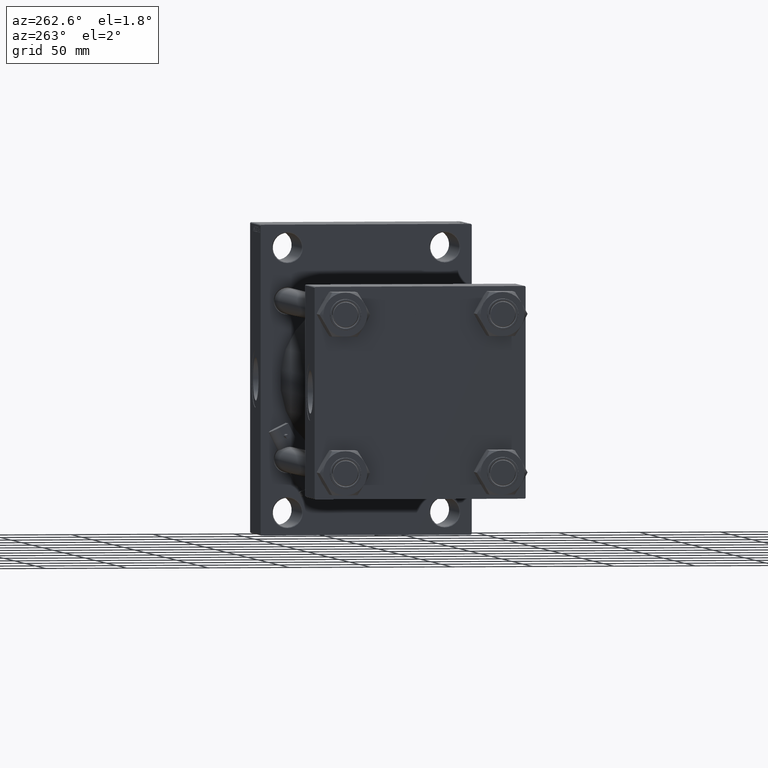
[diagram: clean part render]
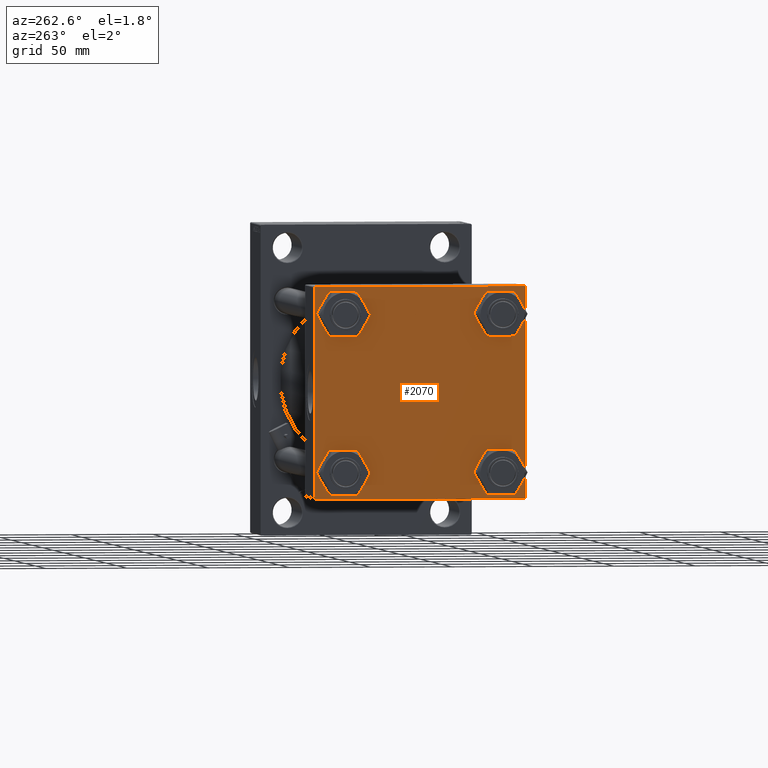
[diagram: same view with one face highlighted and labeled with its STEP entity id]
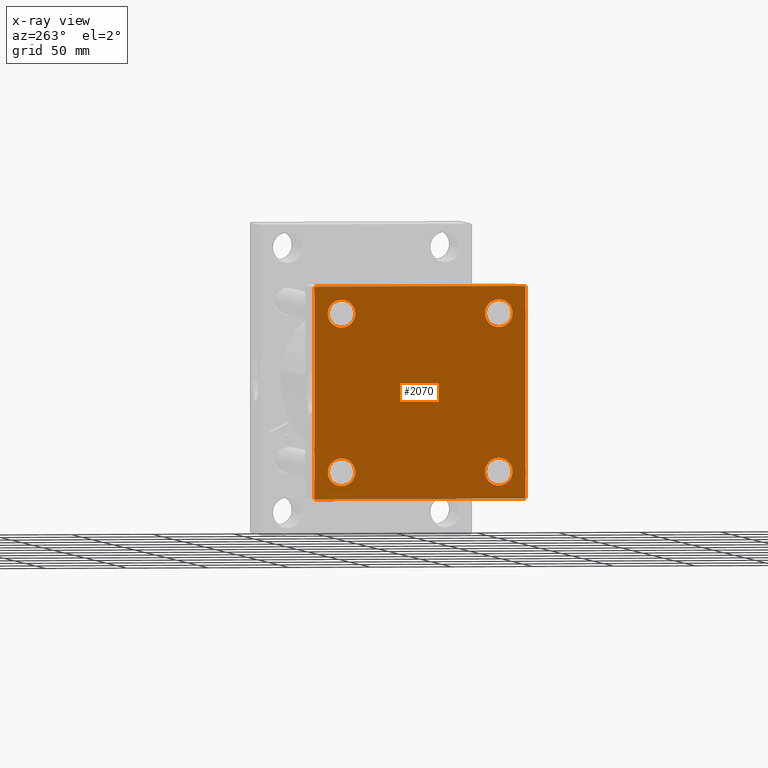
[diagram: x-ray of the same camera — body ghosted, the highlighted face saturated]
A machine part, auxiliary view. The second image highlights one B-rep face of the part: STEP entity #2070.
The next image is the same camera in x-ray: the body ghosted, the highlighted face saturated — about 0% of this face is hidden behind the body in this view.
In plain terms, the highlighted planar face has unit normal (-1, 0, 0).
Its self-contained STEP definition (entity closure, byte-faithful):
#351 = ORIENTED_EDGE ( 'NONE', *, *, #11827, .T. ) ;
#659 = ORIENTED_EDGE ( 'NONE', *, *, #25198, .T. ) ;
#1198 = EDGE_CURVE ( 'NONE', #4623, #29017, #22431, .T. ) ;
#2006 = EDGE_CURVE ( 'NONE', #46653, #12898, #28375, .T. ) ;
#2070 = ADVANCED_FACE ( 'NONE', ( #29105, #32586, #21216, #22180, #6864 ), #17756, .T. ) ;
#3373 = AXIS2_PLACEMENT_3D ( 'NONE', #15522, #45618, #28591 ) ;
#4022 = VECTOR ( 'NONE', #20595, 1000.000000000000000 ) ;
#4623 = VERTEX_POINT ( 'NONE', #26793 ) ;
#5046 = CARTESIAN_POINT ( 'NONE',  ( 0.000000000000000000, 48.45000000000000995, -48.45000000000001705 ) ) ;
#5408 = DIRECTION ( 'NONE',  ( 0.000000000000000000, 0.000000000000000000, -1.000000000000000000 ) ) ;
#6053 = CARTESIAN_POINT ( 'NONE',  ( 0.000000000000000000, 64.49999999999997158, -64.99999999999998579 ) ) ;
#6116 = DIRECTION ( 'NONE',  ( 0.000000000000000000, 0.000000000000000000, -1.000000000000000000 ) ) ;
#6147 = CARTESIAN_POINT ( 'NONE',  ( 0.000000000000000000, 0.000000000000000000, 0.000000000000000000 ) ) ;
#6240 = CARTESIAN_POINT ( 'NONE',  ( 0.000000000000000000, -65.00000000000000000, 64.50000000000000000 ) ) ;
#6554 = CARTESIAN_POINT ( 'NONE',  ( 0.000000000000000000, 65.00000000000000000, -64.49999999999995737 ) ) ;
#6864 = FACE_OUTER_BOUND ( 'NONE', #8700, .T. ) ;
#7552 = DIRECTION ( 'NONE',  ( 0.000000000000000000, 0.000000000000000000, 1.000000000000000000 ) ) ;
#7795 = VERTEX_POINT ( 'NONE', #6240 ) ;
#8123 = DIRECTION ( 'NONE',  ( 1.000000000000000000, -0.000000000000000000, 0.000000000000000000 ) ) ;
#8440 = CARTESIAN_POINT ( 'NONE',  ( 0.000000000000000000, 64.74999999999997158, -64.74999999999997158 ) ) ;
#8700 = EDGE_LOOP ( 'NONE', ( #14493, #46841, #48747, #28647, #8718, #31308, #28714, #35930 ) ) ;
#8718 = ORIENTED_EDGE ( 'NONE', *, *, #32762, .F. ) ;
#9231 = CARTESIAN_POINT ( 'NONE',  ( -0.000000000000000000, -64.74999999999819522, 64.75000000000179057 ) ) ;
#9331 = LINE ( 'NONE', #28089, #47600 ) ;
#9992 = AXIS2_PLACEMENT_3D ( 'NONE', #41611, #26077, #7552 ) ;
#10099 = DIRECTION ( 'NONE',  ( -0.000000000000000000, 0.000000000000000000, 1.000000000000000000 ) ) ;
#10304 = CARTESIAN_POINT ( 'NONE',  ( 0.000000000000000000, -64.49999999999997158, 65.00000000000000000 ) ) ;
#10438 = EDGE_LOOP ( 'NONE', ( #23700, #28710 ) ) ;
#10764 = CIRCLE ( 'NONE', #9992, 8.500000000000007105 ) ;
#10966 = DIRECTION ( 'NONE',  ( 0.000000000000000000, 0.000000000000000000, 1.000000000000000000 ) ) ;
#11440 = AXIS2_PLACEMENT_3D ( 'NONE', #6147, #29353, #10099 ) ;
#11662 = DIRECTION ( 'NONE',  ( -0.000000000000000000, -0.7071067811865474617, -0.7071067811865474617 ) ) ;
#11682 = VERTEX_POINT ( 'NONE', #10304 ) ;
#11801 = DIRECTION ( 'NONE',  ( 1.000000000000000000, -0.000000000000000000, 0.000000000000000000 ) ) ;
#11827 = EDGE_CURVE ( 'NONE', #42698, #48233, #10764, .T. ) ;
#12783 = CARTESIAN_POINT ( 'NONE',  ( 0.000000000000000000, 64.49999999999997158, 65.00000000000001421 ) ) ;
#12874 = CARTESIAN_POINT ( 'NONE',  ( 0.000000000000000000, -64.49999999999994316, -65.00000000000000000 ) ) ;
#12898 = VERTEX_POINT ( 'NONE', #6554 ) ;
#13347 = VERTEX_POINT ( 'NONE', #12874 ) ;
#13803 = CARTESIAN_POINT ( 'NONE',  ( 0.000000000000000000, -48.44999999999999574, -39.95000000000001705 ) ) ;
#13860 = DIRECTION ( 'NONE',  ( 0.000000000000000000, -1.000000000000000000, -1.067522139062650425E-16 ) ) ;
#14493 = ORIENTED_EDGE ( 'NONE', *, *, #2006, .T. ) ;
#14559 = CIRCLE ( 'NONE', #42139, 8.500000000000007105 ) ;
#14574 = AXIS2_PLACEMENT_3D ( 'NONE', #5046, #20112, #30312 ) ;
#15522 = CARTESIAN_POINT ( 'NONE',  ( 0.000000000000000000, -48.44999999999999574, 48.45000000000003126 ) ) ;
#15986 = CARTESIAN_POINT ( 'NONE',  ( 0.000000000000000000, -48.44999999999999574, 56.95000000000003837 ) ) ;
#16682 = VECTOR ( 'NONE', #11662, 1000.000000000000114 ) ;
#16861 = DIRECTION ( 'NONE',  ( 0.000000000000000000, -0.7071067811865279218, 0.7071067811865671127 ) ) ;
#17574 = VERTEX_POINT ( 'NONE', #29309 ) ;
#17637 = EDGE_CURVE ( 'NONE', #34892, #46653, #34232, .T. ) ;
#17756 = PLANE ( 'NONE',  #11440 ) ;
#18657 = CARTESIAN_POINT ( 'NONE',  ( 0.000000000000000000, -48.44999999999999574, 48.45000000000003126 ) ) ;
#18867 = CARTESIAN_POINT ( 'NONE',  ( 0.000000000000000000, 48.45000000000000995, 39.95000000000000284 ) ) ;
#19483 = DIRECTION ( 'NONE',  ( 0.000000000000000000, 0.000000000000000000, 1.000000000000000000 ) ) ;
#19689 = DIRECTION ( 'NONE',  ( 0.000000000000000000, 0.000000000000000000, 1.000000000000000000 ) ) ;
#20112 = DIRECTION ( 'NONE',  ( 1.000000000000000000, -0.000000000000000000, 0.000000000000000000 ) ) ;
#20132 = CARTESIAN_POINT ( 'NONE',  ( 0.000000000000000000, 64.74999999999998579, 64.74999999999998579 ) ) ;
#20225 = CARTESIAN_POINT ( 'NONE',  ( 0.000000000000000000, 65.00000000000000000, 65.00000000000001421 ) ) ;
#20567 = LINE ( 'NONE', #35635, #35782 ) ;
#20595 = DIRECTION ( 'NONE',  ( -0.000000000000000000, 0.7071067811865672237, 0.7071067811865279218 ) ) ;
#21216 = FACE_BOUND ( 'NONE', #27451, .T. ) ;
#21256 = VECTOR ( 'NONE', #33091, 1000.000000000000000 ) ;
#21445 = AXIS2_PLACEMENT_3D ( 'NONE', #47054, #39668, #24362 ) ;
#21759 = VERTEX_POINT ( 'NONE', #31769 ) ;
#22180 = FACE_BOUND ( 'NONE', #25657, .T. ) ;
#22431 = CIRCLE ( 'NONE', #14574, 8.500000000000007105 ) ;
#23133 = EDGE_CURVE ( 'NONE', #7795, #11682, #34935, .T. ) ;
#23685 = CARTESIAN_POINT ( 'NONE',  ( 0.000000000000000000, 65.00000000000000000, 64.49999999999998579 ) ) ;
#23700 = ORIENTED_EDGE ( 'NONE', *, *, #31518, .T. ) ;
#23987 = CARTESIAN_POINT ( 'NONE',  ( 0.000000000000000000, 65.00000000000000000, 65.00000000000001421 ) ) ;
#24362 = DIRECTION ( 'NONE',  ( 0.000000000000000000, 0.000000000000000000, 1.000000000000000000 ) ) ;
#24596 = ORIENTED_EDGE ( 'NONE', *, *, #1198, .T. ) ;
#25198 = EDGE_CURVE ( 'NONE', #21759, #36946, #38670, .T. ) ;
#25406 = EDGE_CURVE ( 'NONE', #44193, #41715, #32497, .T. ) ;
#25657 = EDGE_LOOP ( 'NONE', ( #659, #29594 ) ) ;
#26077 = DIRECTION ( 'NONE',  ( 1.000000000000000000, -0.000000000000000000, 0.000000000000000000 ) ) ;
#26761 = EDGE_CURVE ( 'NONE', #12898, #29419, #46188, .T. ) ;
#26793 = CARTESIAN_POINT ( 'NONE',  ( 0.000000000000000000, 48.45000000000000995, -56.95000000000002416 ) ) ;
#26803 = DIRECTION ( 'NONE',  ( 0.000000000000000000, 0.7071067811865474617, -0.7071067811865474617 ) ) ;
#27451 = EDGE_LOOP ( 'NONE', ( #32270, #24596 ) ) ;
#27681 = LINE ( 'NONE', #23987, #35433 ) ;
#27745 = AXIS2_PLACEMENT_3D ( 'NONE', #18657, #33721, #33973 ) ;
#28089 = CARTESIAN_POINT ( 'NONE',  ( 0.000000000000000000, -65.00000000000000000, 65.00000000000000000 ) ) ;
#28273 = EDGE_CURVE ( 'NONE', #36946, #21759, #40363, .T. ) ;
#28375 = LINE ( 'NONE', #20225, #28781 ) ;
#28591 = DIRECTION ( 'NONE',  ( 0.000000000000000000, 0.000000000000000000, 1.000000000000000000 ) ) ;
#28647 = ORIENTED_EDGE ( 'NONE', *, *, #32400, .T. ) ;
#28710 = ORIENTED_EDGE ( 'NONE', *, *, #25406, .T. ) ;
#28714 = ORIENTED_EDGE ( 'NONE', *, *, #41131, .F. ) ;
#28781 = VECTOR ( 'NONE', #5408, 1000.000000000000000 ) ;
#29017 = VERTEX_POINT ( 'NONE', #35268 ) ;
#29105 = FACE_BOUND ( 'NONE', #10438, .T. ) ;
#29309 = CARTESIAN_POINT ( 'NONE',  ( 0.000000000000000000, -65.00000000000000000, -64.49999999999991473 ) ) ;
#29353 = DIRECTION ( 'NONE',  ( -1.000000000000000000, 0.000000000000000000, -0.000000000000000000 ) ) ;
#29419 = VERTEX_POINT ( 'NONE', #6053 ) ;
#29594 = ORIENTED_EDGE ( 'NONE', *, *, #28273, .T. ) ;
#29735 = CARTESIAN_POINT ( 'NONE',  ( 0.000000000000000000, -48.44999999999999574, -48.45000000000003126 ) ) ;
#29864 = CARTESIAN_POINT ( 'NONE',  ( 0.000000000000000000, 48.45000000000000995, -48.45000000000001705 ) ) ;
#30312 = DIRECTION ( 'NONE',  ( 0.000000000000000000, 0.000000000000000000, 1.000000000000000000 ) ) ;
#31022 = CARTESIAN_POINT ( 'NONE',  ( 0.000000000000000000, -48.44999999999999574, 39.95000000000001705 ) ) ;
#31308 = ORIENTED_EDGE ( 'NONE', *, *, #23133, .T. ) ;
#31518 = EDGE_CURVE ( 'NONE', #41715, #44193, #48329, .T. ) ;
#31769 = CARTESIAN_POINT ( 'NONE',  ( 0.000000000000000000, 48.45000000000000995, 56.95000000000002416 ) ) ;
#31834 = CIRCLE ( 'NONE', #34978, 8.500000000000007105 ) ;
#32131 = EDGE_CURVE ( 'NONE', #48233, #42698, #31834, .T. ) ;
#32270 = ORIENTED_EDGE ( 'NONE', *, *, #33736, .T. ) ;
#32366 = CARTESIAN_POINT ( 'NONE',  ( 0.000000000000000000, 65.00000000000000000, -64.99999999999998579 ) ) ;
#32400 = EDGE_CURVE ( 'NONE', #13347, #17574, #20567, .T. ) ;
#32497 = CIRCLE ( 'NONE', #27745, 8.500000000000007105 ) ;
#32586 = FACE_BOUND ( 'NONE', #40068, .T. ) ;
#32762 = EDGE_CURVE ( 'NONE', #7795, #17574, #9331, .T. ) ;
#33091 = DIRECTION ( 'NONE',  ( 0.000000000000000000, -1.000000000000000000, -1.067522139062650425E-16 ) ) ;
#33721 = DIRECTION ( 'NONE',  ( 1.000000000000000000, -0.000000000000000000, 0.000000000000000000 ) ) ;
#33736 = EDGE_CURVE ( 'NONE', #29017, #4623, #14559, .T. ) ;
#33973 = DIRECTION ( 'NONE',  ( 0.000000000000000000, 0.000000000000000000, 1.000000000000000000 ) ) ;
#34232 = LINE ( 'NONE', #20132, #44819 ) ;
#34892 = VERTEX_POINT ( 'NONE', #12783 ) ;
#34935 = LINE ( 'NONE', #9231, #4022 ) ;
#34978 = AXIS2_PLACEMENT_3D ( 'NONE', #29735, #44767, #10966 ) ;
#35268 = CARTESIAN_POINT ( 'NONE',  ( 0.000000000000000000, 48.45000000000000995, -39.95000000000000284 ) ) ;
#35433 = VECTOR ( 'NONE', #13860, 1000.000000000000000 ) ;
#35635 = CARTESIAN_POINT ( 'NONE',  ( 0.000000000000000000, -64.75000000000176215, -64.74999999999816680 ) ) ;
#35782 = VECTOR ( 'NONE', #16861, 1000.000000000000000 ) ;
#35930 = ORIENTED_EDGE ( 'NONE', *, *, #17637, .T. ) ;
#36946 = VERTEX_POINT ( 'NONE', #18867 ) ;
#38670 = CIRCLE ( 'NONE', #21445, 8.500000000000007105 ) ;
#38926 = ORIENTED_EDGE ( 'NONE', *, *, #32131, .T. ) ;
#39062 = CARTESIAN_POINT ( 'NONE',  ( 0.000000000000000000, -48.44999999999999574, -56.95000000000003837 ) ) ;
#39668 = DIRECTION ( 'NONE',  ( 1.000000000000000000, -0.000000000000000000, 0.000000000000000000 ) ) ;
#40068 = EDGE_LOOP ( 'NONE', ( #38926, #351 ) ) ;
#40363 = CIRCLE ( 'NONE', #44300, 8.500000000000007105 ) ;
#41131 = EDGE_CURVE ( 'NONE', #34892, #11682, #27681, .T. ) ;
#41611 = CARTESIAN_POINT ( 'NONE',  ( 0.000000000000000000, -48.44999999999999574, -48.45000000000003126 ) ) ;
#41715 = VERTEX_POINT ( 'NONE', #15986 ) ;
#42139 = AXIS2_PLACEMENT_3D ( 'NONE', #29864, #8123, #19483 ) ;
#42698 = VERTEX_POINT ( 'NONE', #39062 ) ;
#44193 = VERTEX_POINT ( 'NONE', #31022 ) ;
#44300 = AXIS2_PLACEMENT_3D ( 'NONE', #45110, #11801, #19689 ) ;
#44767 = DIRECTION ( 'NONE',  ( 1.000000000000000000, -0.000000000000000000, 0.000000000000000000 ) ) ;
#44819 = VECTOR ( 'NONE', #26803, 1000.000000000000114 ) ;
#45110 = CARTESIAN_POINT ( 'NONE',  ( 0.000000000000000000, 48.45000000000000995, 48.45000000000001705 ) ) ;
#45580 = EDGE_CURVE ( 'NONE', #29419, #13347, #47628, .T. ) ;
#45618 = DIRECTION ( 'NONE',  ( 1.000000000000000000, -0.000000000000000000, 0.000000000000000000 ) ) ;
#46188 = LINE ( 'NONE', #8440, #16682 ) ;
#46653 = VERTEX_POINT ( 'NONE', #23685 ) ;
#46841 = ORIENTED_EDGE ( 'NONE', *, *, #26761, .T. ) ;
#47054 = CARTESIAN_POINT ( 'NONE',  ( 0.000000000000000000, 48.45000000000000995, 48.45000000000001705 ) ) ;
#47600 = VECTOR ( 'NONE', #6116, 1000.000000000000000 ) ;
#47628 = LINE ( 'NONE', #32366, #21256 ) ;
#48233 = VERTEX_POINT ( 'NONE', #13803 ) ;
#48329 = CIRCLE ( 'NONE', #3373, 8.500000000000007105 ) ;
#48747 = ORIENTED_EDGE ( 'NONE', *, *, #45580, .T. ) ;